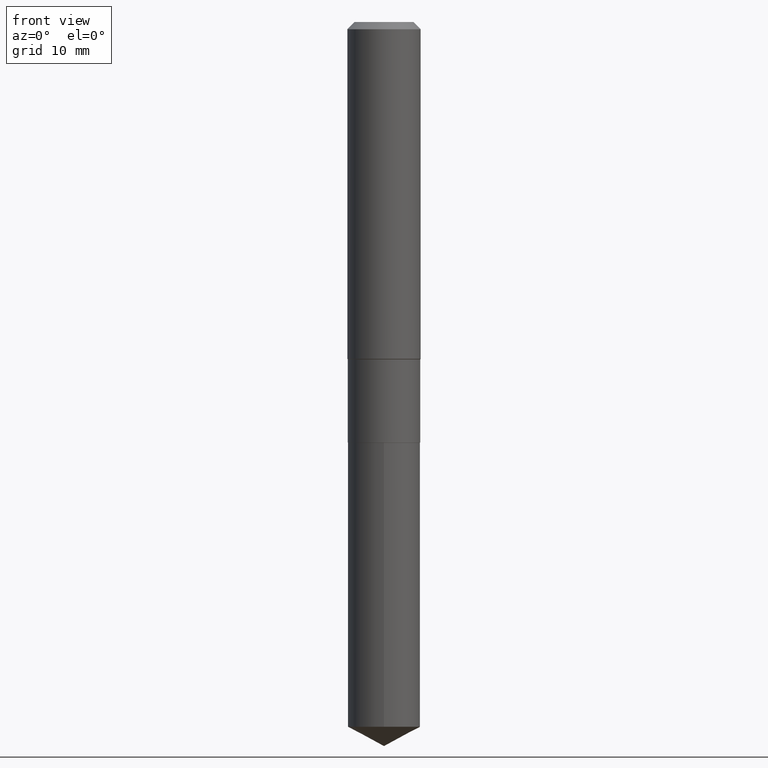
[diagram: clean part render]
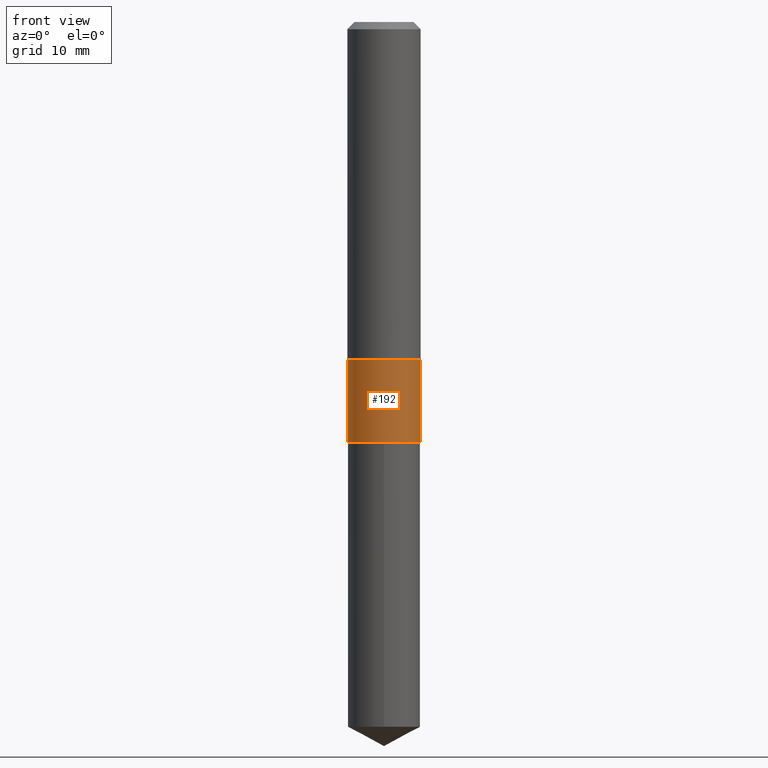
[diagram: same view with one face highlighted and labeled with its STEP entity id]
A machine part, front view. The second image highlights one B-rep face of the part: STEP entity #192.
In plain terms, the highlighted cylindrical surface (edge-blend (fillet) strip) has radius 3.9497 mm, axis along (-0, 0, 1).
Its self-contained STEP definition (entity closure, byte-faithful):
#41 = ORIENTED_EDGE ( 'NONE', *, *, #294, .F. ) ;
#48 = CYLINDRICAL_SURFACE ( 'NONE', #246, 0.1554999999999999438 ) ;
#68 = DIRECTION ( 'NONE',  ( -2.445468806185136877E-29, 3.491481338843145188E-15, 1.000000000000000000 ) ) ;
#87 = CARTESIAN_POINT ( 'NONE',  ( 0.000000000000000000, 0.000000000000000000, 0.000000000000000000 ) ) ;
#92 = ORIENTED_EDGE ( 'NONE', *, *, #116, .T. ) ;
#116 = EDGE_CURVE ( 'NONE', #408, #233, #360, .T. ) ;
#121 = CARTESIAN_POINT ( 'NONE',  ( 3.544217940804118480E-29, -5.060203904385370615E-15, -1.449300000000000033 ) ) ;
#129 = ORIENTED_EDGE ( 'NONE', *, *, #410, .T. ) ;
#164 = DIRECTION ( 'NONE',  ( 1.000000000000000000, -6.982962677686268288E-15, 4.876176775795936353E-29 ) ) ;
#192 = ADVANCED_FACE ( 'NONE', ( #271 ), #48, .T. ) ;
#195 = LINE ( 'NONE', #416, #350 ) ;
#202 = CIRCLE ( 'NONE', #414, 0.1554999999999999438 ) ;
#218 = VECTOR ( 'NONE', #68, 39.37007874015748143 ) ;
#233 = VERTEX_POINT ( 'NONE', #305 ) ;
#246 = AXIS2_PLACEMENT_3D ( 'NONE', #87, #422, #164 ) ;
#260 = VERTEX_POINT ( 'NONE', #265 ) ;
#261 = DIRECTION ( 'NONE',  ( -2.445468806185136597E-29, 3.491481338843145583E-15, 1.000000000000000000 ) ) ;
#265 = CARTESIAN_POINT ( 'NONE',  ( 0.1554999999999999438, -6.146054600765585278E-15, -1.449300000000000033 ) ) ;
#267 = VERTEX_POINT ( 'NONE', #379 ) ;
#271 = FACE_OUTER_BOUND ( 'NONE', #380, .T. ) ;
#279 = CARTESIAN_POINT ( 'NONE',  ( -0.1554999999999999993, -4.578888517395800557E-15, -1.806499999999999995 ) ) ;
#284 = DIRECTION ( 'NONE',  ( -2.445468806185136597E-29, 3.491481338843145583E-15, 1.000000000000000000 ) ) ;
#294 = EDGE_CURVE ( 'NONE', #408, #267, #195, .T. ) ;
#300 = EDGE_CURVE ( 'NONE', #267, #260, #202, .T. ) ;
#305 = CARTESIAN_POINT ( 'NONE',  ( 0.1554999999999999993, -7.393211735000357126E-15, -1.806499999999999995 ) ) ;
#350 = VECTOR ( 'NONE', #490, 39.37007874015748143 ) ;
#357 = LINE ( 'NONE', #478, #218 ) ;
#360 = CIRCLE ( 'NONE', #393, 0.1554999999999999993 ) ;
#365 = DIRECTION ( 'NONE',  ( 1.000000000000000000, -6.982962677686266711E-15, 0.000000000000000000 ) ) ;
#379 = CARTESIAN_POINT ( 'NONE',  ( -0.1554999999999999438, -4.578888517395801346E-15, -1.449300000000000033 ) ) ;
#380 = EDGE_LOOP ( 'NONE', ( #41, #92, #129, #427 ) ) ;
#393 = AXIS2_PLACEMENT_3D ( 'NONE', #477, #284, #365 ) ;
#408 = VERTEX_POINT ( 'NONE', #279 ) ;
#410 = EDGE_CURVE ( 'NONE', #233, #260, #357, .T. ) ;
#414 = AXIS2_PLACEMENT_3D ( 'NONE', #121, #261, #415 ) ;
#415 = DIRECTION ( 'NONE',  ( 1.000000000000000000, -6.982962677686269077E-15, 0.000000000000000000 ) ) ;
#416 = CARTESIAN_POINT ( 'NONE',  ( -0.1554999999999999438, 1.104893954106955390E-15, -7.648944065346376022E-30 ) ) ;
#422 = DIRECTION ( 'NONE',  ( -2.445468806185136597E-29, 3.491481338843145583E-15, 1.000000000000000000 ) ) ;
#427 = ORIENTED_EDGE ( 'NONE', *, *, #300, .F. ) ;
#477 = CARTESIAN_POINT ( 'NONE',  ( 4.417739398373449267E-29, -6.307361038620141674E-15, -1.806499999999999995 ) ) ;
#478 = CARTESIAN_POINT ( 'NONE',  ( 0.1554999999999999438, -1.085850696380214268E-15, 7.582454886362678420E-30 ) ) ;
#490 = DIRECTION ( 'NONE',  ( -2.445468806185136877E-29, 3.491481338843145188E-15, 1.000000000000000000 ) ) ;